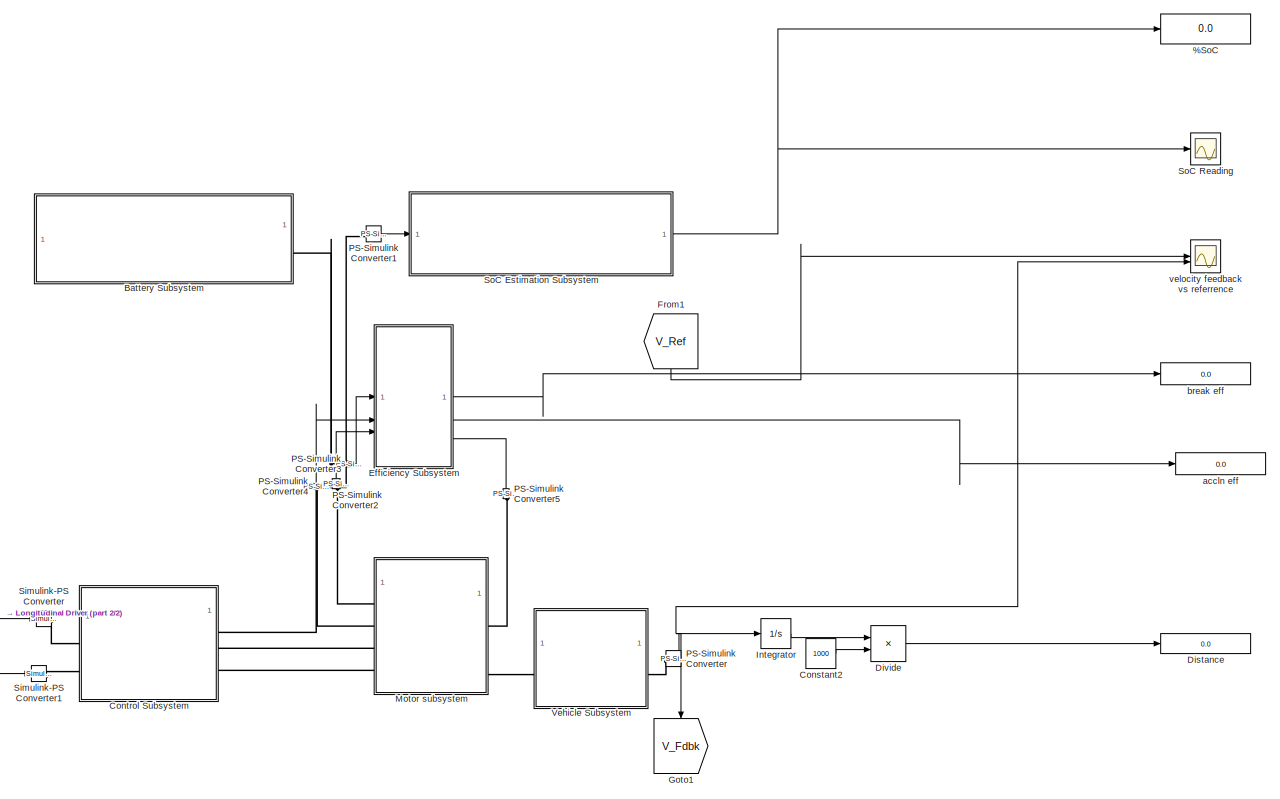
[diagram: root canvas - part 1/2, center side, full height]
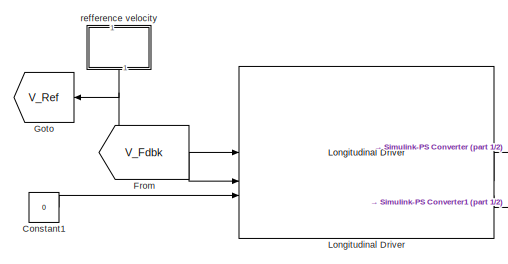
[diagram: root canvas - part 2/2, bottom left region]
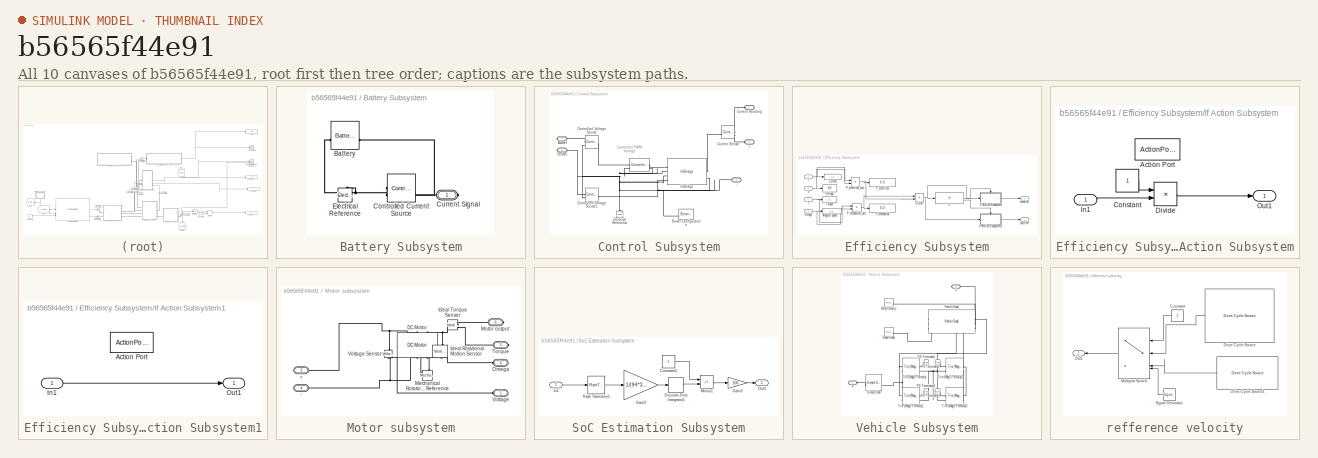
[diagram: thumbnail index - all 10 canvases of the model, root first then tree order]
MODEL slx_b56565f44e91
KIND model
CONFIG AbsTol = auto
CONFIG EnableMultiTasking = off
CONFIG FixedStep = auto
CONFIG MaxStep = auto
CONFIG MinStep = auto
CONFIG RelTol = 1e-3
CONFIG SampleTimeConstraint = Unconstrained
CONFIG SolverName = VariableStepAuto
CONFIG StartTime = 0.0
CONFIG StopTime = 2474
BLOCK [Display] %SoC
  Decimation = 1
BLOCK [SubSystem] Battery Subsystem
BLOCK [Reference] Battery Subsystem/Battery  REF=batteryecm_lib/Battery
  LibrarySourceBlock = ee_lib/Sources/Battery
  SourceBlock = batteryecm_lib/Battery
  SourceType = Battery
BLOCK [Reference] Battery Subsystem/Controlled Current Source  REF=fl_lib/Electrical/Electrical Sources/Controlled Current
Source
  NameLocation = top
  SourceBlock = fl_lib/Electrical/Electrical Sources/Controlled Current\nSource
  SourceType = Controlled Current\nSource
BLOCK [PMIOPort] Battery Subsystem/Current Signal
  Side = Right
BLOCK [Reference] Battery Subsystem/Electrical Reference  REF=fl_lib/Electrical/Electrical Elements/Electrical Reference
  LibrarySourceBlock = ee_lib/Connectors &\nReferences/Electrical Reference
  SourceBlock = fl_lib/Electrical/Electrical Elements/Electrical Reference
  SourceType = Electrical Reference
BLOCK [Constant] Constant1
  Value = 0
BLOCK [Constant] Constant2
  Value = 1000
BLOCK [SubSystem] Control Subsystem
BLOCK [PMIOPort] Control Subsystem/+
  Port = 2
  Side = Left
BLOCK [PMIOPort] Control Subsystem/-
  NameLocation = top
  Port = 3
  Side = Left
BLOCK [Reference] Control Subsystem/.  REF=ee_lib/Integrated Circuits/Controlled PWM
Voltage
  SourceBlock = ee_lib/Integrated Circuits/Controlled PWM\nVoltage
  SourceType = Controlled PWM\nVoltage
BLOCK [PMIOPort] Control Subsystem/AccRef
  Port = 4
  Side = Right
BLOCK [Reference] Control Subsystem/Controlled Voltage Source  REF=fl_lib/Electrical/Electrical Sources/Controlled Voltage
Source
  NameLocation = right
  SourceBlock = fl_lib/Electrical/Electrical Sources/Controlled Voltage\nSource
  SourceType = Controlled Voltage\nSource
BLOCK [Reference] Control Subsystem/Controlled Voltage Source1  REF=fl_lib/Electrical/Electrical Sources/Controlled Voltage
Source
  SourceBlock = fl_lib/Electrical/Electrical Sources/Controlled Voltage\nSource
  SourceType = Controlled Voltage\nSource
BLOCK [PMIOPort] Control Subsystem/Current Reading
  Side = Left
BLOCK [Reference] Control Subsystem/Current Sensor  REF=fl_lib/Electrical/Electrical Sensors/Current Sensor
  SourceBlock = fl_lib/Electrical/Electrical Sensors/Current Sensor
  SourceType = Current Sensor
BLOCK [PMIOPort] Control Subsystem/DecRef
  Port = 5
  Side = Right
BLOCK [Reference] Control Subsystem/Electrical Reference  REF=fl_lib/Electrical/Electrical Elements/Electrical Reference
  LibrarySourceBlock = ee_lib/Connectors &\nReferences/Electrical Reference
  NameLocation = right
  SourceBlock = fl_lib/Electrical/Electrical Elements/Electrical Reference
  SourceType = Electrical Reference
BLOCK [Reference] Control Subsystem/H-Bridge  REF=ee_lib/Semiconductors &
Converters/Converters/H-Bridge
  SourceBlock = ee_lib/Semiconductors &\nConverters/Converters/H-Bridge
  SourceType = H-Bridge
BLOCK [Reference] Control Subsystem/Solver Configuration  REF=nesl_utility/Solver
Configuration
  NameLocation = top
  SourceBlock = nesl_utility/Solver\nConfiguration
  SourceType = Solver\nConfiguration
BLOCK [Display] Distance
  Decimation = 1
BLOCK [Product] Divide
  Inputs = */
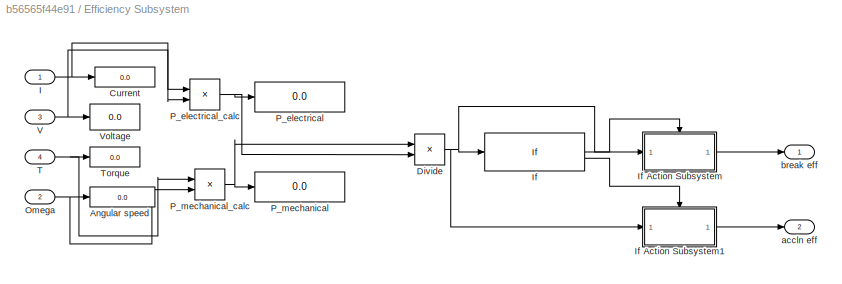
BLOCK [SubSystem] Efficiency Subsystem
  PortSchema = {"entries":[{"content":{"sides":[{"content":{"connectorIds":["In1","In2","In3"]},"type":"ConnectorPlacement.EquallySpacedRectSide","uuid":"06f3370c-e007-458e-92de-6f83343b1b99"},{"content":{"connectorIds":["Out1","Out2","In4"],"side":"RIGHT"},"type":"ConnectorPlacement.EquallySpacedRectSide","uuid":"ba25a50b-e027-4934-8a11-e656e38d1524"},{"content":{"side":"TOP"},"type":"ConnectorPlacement.Equally...<+247ch>
BLOCK [Display] Efficiency Subsystem/Angular speed
  Decimation = 1
BLOCK [Display] Efficiency Subsystem/Current
  Decimation = 1
BLOCK [Product] Efficiency Subsystem/Divide
  Inputs = */
BLOCK [Inport] Efficiency Subsystem/I
BLOCK [If] Efficiency Subsystem/If
  IfExpression = u1 > 1
BLOCK [SubSystem] Efficiency Subsystem/If Action Subsystem
  TreatAsAtomicUnit = on
BLOCK [ActionPort] Efficiency Subsystem/If Action Subsystem/Action Port
  ActionPortLabel = if(u1 > 1)
BLOCK [Constant] Efficiency Subsystem/If Action Subsystem/Constant
BLOCK [Product] Efficiency Subsystem/If Action Subsystem/Divide
  Inputs = */
BLOCK [Inport] Efficiency Subsystem/If Action Subsystem/In1
BLOCK [Outport] Efficiency Subsystem/If Action Subsystem/Out1
BLOCK [SubSystem] Efficiency Subsystem/If Action Subsystem1
  TreatAsAtomicUnit = on
BLOCK [ActionPort] Efficiency Subsystem/If Action Subsystem1/Action Port
  ActionPortLabel = else
BLOCK [Inport] Efficiency Subsystem/If Action Subsystem1/In1
BLOCK [Outport] Efficiency Subsystem/If Action Subsystem1/Out1
BLOCK [Inport] Efficiency Subsystem/Omega
  Port = 2
BLOCK [Display] Efficiency Subsystem/P_electrical
  Decimation = 1
BLOCK [Product] Efficiency Subsystem/P_electrical_calc
BLOCK [Display] Efficiency Subsystem/P_mechanical
  Decimation = 1
BLOCK [Product] Efficiency Subsystem/P_mechanical_calc
BLOCK [Inport] Efficiency Subsystem/T
  Port = 4
BLOCK [Display] Efficiency Subsystem/Torque
  Decimation = 1
BLOCK [Inport] Efficiency Subsystem/V
  Port = 3
BLOCK [Display] Efficiency Subsystem/Voltage
  Decimation = 1
BLOCK [Outport] Efficiency Subsystem/accln eff
  Port = 2
BLOCK [Outport] Efficiency Subsystem/break eff
BLOCK [From] From
  GotoTag = V_Fdbk
BLOCK [From] From1
  GotoTag = V_Ref
  NameLocation = left
BLOCK [Goto] Goto
  GotoTag = V_Ref
  NameLocation = top
BLOCK [Goto] Goto1
  GotoTag = V_Fdbk
  NameLocation = left
BLOCK [Integrator] Integrator
BLOCK [Reference] Longitudinal Driver  REF=autolibshared/Longitudinal Driver
  LibrarySourceBlock = autolibscenario/Longitudinal Driver
  SourceBlock = autolibshared/Longitudinal Driver
  SourceType = Longitudinal Driver
BLOCK [SubSystem] Motor subsystem
BLOCK [PMIOPort] Motor subsystem/+
  Port = 3
  Side = Left
BLOCK [PMIOPort] Motor subsystem/-
  Port = 4
  Side = Left
BLOCK [Reference] Motor subsystem/DC Motor  REF=ee_lib/Electromechanical/Brushed Motors/DC Motor
  NameLocation = right
  SourceBlock = ee_lib/Electromechanical/Brushed Motors/DC Motor
  SourceType = DC Motor
BLOCK [Reference] Motor subsystem/Ideal Rotational Motion Sensor  REF=fl_lib/Mechanical/Mechanical Sensors/Ideal Rotational
Motion Sensor
  NameLocation = left
  SourceBlock = fl_lib/Mechanical/Mechanical Sensors/Ideal Rotational\nMotion Sensor
  SourceType = Ideal Rotational\nMotion Sensor
BLOCK [Reference] Motor subsystem/Ideal Torque Sensor  REF=fl_lib/Mechanical/Mechanical Sensors/Ideal Torque Sensor
  SourceBlock = fl_lib/Mechanical/Mechanical Sensors/Ideal Torque Sensor
  SourceType = Ideal Torque Sensor
BLOCK [Reference] Motor subsystem/Mechanical Rotational Reference  REF=fl_lib/Mechanical/Rotational Elements/Mechanical
Rotational Reference
  NameLocation = right
  SourceBlock = fl_lib/Mechanical/Rotational Elements/Mechanical\nRotational Reference
  SourceType = Mechanical\nRotational Reference
BLOCK [PMIOPort] Motor subsystem/Motor output
  Port = 6
  Side = Right
BLOCK [PMIOPort] Motor subsystem/Omega
  Port = 2
  Side = Left
BLOCK [PMIOPort] Motor subsystem/Torque
  Port = 5
  Side = Right
BLOCK [PMIOPort] Motor subsystem/Voltage
  Side = Left
BLOCK [Reference] Motor subsystem/Voltage Sensor  REF=fl_lib/Electrical/Electrical Sensors/Voltage Sensor
  NameLocation = left
  SourceBlock = fl_lib/Electrical/Electrical Sensors/Voltage Sensor
  SourceType = Voltage Sensor
BLOCK [Reference] PS-Simulink Converter  REF=nesl_utility/PS-Simulink
Converter
  SourceBlock = nesl_utility/PS-Simulink\nConverter
  SourceType = PS-Simulink\nConverter
BLOCK [Reference] PS-Simulink Converter1  REF=nesl_utility/PS-Simulink
Converter
  SourceBlock = nesl_utility/PS-Simulink\nConverter
  SourceType = PS-Simulink\nConverter
BLOCK [Reference] PS-Simulink Converter2  REF=nesl_utility/PS-Simulink
Converter
  NameLocation = right
  SourceBlock = nesl_utility/PS-Simulink\nConverter
  SourceType = PS-Simulink\nConverter
BLOCK [Reference] PS-Simulink Converter3  REF=nesl_utility/PS-Simulink
Converter
  SourceBlock = nesl_utility/PS-Simulink\nConverter
  SourceType = PS-Simulink\nConverter
BLOCK [Reference] PS-Simulink Converter4  REF=nesl_utility/PS-Simulink
Converter
  NameLocation = right
  SourceBlock = nesl_utility/PS-Simulink\nConverter
  SourceType = PS-Simulink\nConverter
BLOCK [Reference] PS-Simulink Converter5  REF=nesl_utility/PS-Simulink
Converter
  NameLocation = right
  SourceBlock = nesl_utility/PS-Simulink\nConverter
  SourceType = PS-Simulink\nConverter
BLOCK [Reference] Simulink-PS Converter  REF=nesl_utility/Simulink-PS
Converter
  SourceBlock = nesl_utility/Simulink-PS\nConverter
  SourceType = Simulink-PS\nConverter
BLOCK [Reference] Simulink-PS Converter1  REF=nesl_utility/Simulink-PS
Converter
  SourceBlock = nesl_utility/Simulink-PS\nConverter
  SourceType = Simulink-PS\nConverter
BLOCK [SubSystem] SoC Estimation Subsystem
BLOCK [Constant] SoC Estimation Subsystem/Constant1
BLOCK [DiscreteIntegrator] SoC Estimation Subsystem/Discrete-Time Integrator1
  ICPrevOutput = DiscIntNeverNeededParam
  ICPrevScaledInput = DiscIntNeverNeededParam
  InitialConditionSetting = Auto
  SampleTime = -1
BLOCK [Gain] SoC Estimation Subsystem/Gain2
  Gain = 1/(94*3600)
BLOCK [Gain] SoC Estimation Subsystem/Gain3
  Gain = 100
BLOCK [Inport] SoC Estimation Subsystem/In1
BLOCK [Sum] SoC Estimation Subsystem/Minus1
  IconShape = rectangular
  Inputs = +-
BLOCK [Outport] SoC Estimation Subsystem/Out1
BLOCK [RateTransition] SoC Estimation Subsystem/Rate Transition1
BLOCK [Scope] SoC Reading
  Floating = off
  NumInputPorts = 1
  ScopeSpecificationString = Simulink.scopes.TimeScopeBlockCfg('CurrentConfiguration', extmgr.ConfigurationSet(extmgr.Configuration('Core','General UI',true),extmgr.Configuration('Core','Source UI',true),extmgr.Configuration('Sources','WiredSimulink',true,'DataLoggingVariableName','ScopeData1'),extmgr.Configuration('Visuals','Time Domain',true,'SerializedDisplays',{struct('MinYLimReal','63.42394','MaxYLimReal','123.74635','YL...<+1586ch>
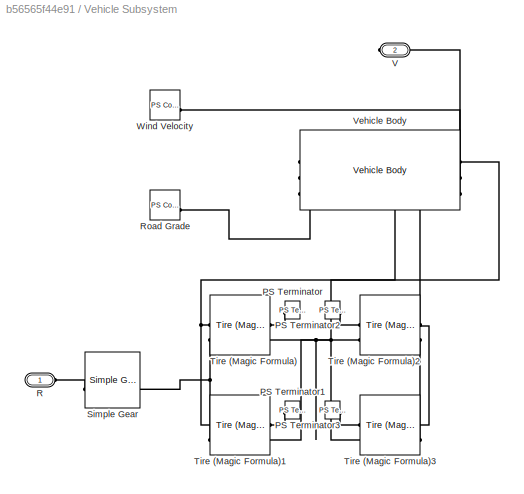
BLOCK [SubSystem] Vehicle Subsystem
BLOCK [Reference] Vehicle Subsystem/PS Terminator  REF=fl_lib/Physical Signals/Sinks/PS Terminator
  SourceBlock = fl_lib/Physical Signals/Sinks/PS Terminator
  SourceType = PS Terminator
BLOCK [Reference] Vehicle Subsystem/PS Terminator1  REF=fl_lib/Physical Signals/Sinks/PS Terminator
  SourceBlock = fl_lib/Physical Signals/Sinks/PS Terminator
  SourceType = PS Terminator
BLOCK [Reference] Vehicle Subsystem/PS Terminator2  REF=fl_lib/Physical Signals/Sinks/PS Terminator
  SourceBlock = fl_lib/Physical Signals/Sinks/PS Terminator
  SourceType = PS Terminator
BLOCK [Reference] Vehicle Subsystem/PS Terminator3  REF=fl_lib/Physical Signals/Sinks/PS Terminator
  SourceBlock = fl_lib/Physical Signals/Sinks/PS Terminator
  SourceType = PS Terminator
BLOCK [PMIOPort] Vehicle Subsystem/R
  Side = Left
BLOCK [Reference] Vehicle Subsystem/Road Grade  REF=fl_lib/Physical Signals/Sources/PS Constant
  SourceBlock = fl_lib/Physical Signals/Sources/PS Constant
  SourceType = PS Constant
BLOCK [Reference] Vehicle Subsystem/Simple Gear  REF=sdl_lib/Gears/Simple Gear
  SourceBlock = sdl_lib/Gears/Simple Gear
  SourceType = Simple Gear
BLOCK [Reference] Vehicle Subsystem/Tire (Magic Formula)  REF=sdl_lib/Tires & Vehicles/Tire (Magic Formula)
  SourceBlock = sdl_lib/Tires & Vehicles/Tire (Magic Formula)
  SourceType = Tire (Magic Formula)
BLOCK [Reference] Vehicle Subsystem/Tire (Magic Formula)1  REF=sdl_lib/Tires & Vehicles/Tire (Magic Formula)
  SourceBlock = sdl_lib/Tires & Vehicles/Tire (Magic Formula)
  SourceType = Tire (Magic Formula)
BLOCK [Reference] Vehicle Subsystem/Tire (Magic Formula)2  REF=sdl_lib/Tires & Vehicles/Tire (Magic Formula)
  SourceBlock = sdl_lib/Tires & Vehicles/Tire (Magic Formula)
  SourceType = Tire (Magic Formula)
BLOCK [Reference] Vehicle Subsystem/Tire (Magic Formula)3  REF=sdl_lib/Tires & Vehicles/Tire (Magic Formula)
  SourceBlock = sdl_lib/Tires & Vehicles/Tire (Magic Formula)
  SourceType = Tire (Magic Formula)
BLOCK [PMIOPort] Vehicle Subsystem/V
  Port = 2
  Side = Right
BLOCK [Reference] Vehicle Subsystem/Vehicle Body  REF=sdl_lib/Tires & Vehicles/Vehicle Body
  NameLocation = top
  SourceBlock = sdl_lib/Tires & Vehicles/Vehicle Body
  SourceType = Vehicle Body
BLOCK [Reference] Vehicle Subsystem/Wind Velocity  REF=fl_lib/Physical Signals/Sources/PS Constant
  SourceBlock = fl_lib/Physical Signals/Sources/PS Constant
  SourceType = PS Constant
BLOCK [Display] accln eff
  Decimation = 1
BLOCK [Display] break eff
  Decimation = 1
BLOCK [SubSystem] refference velocity
  NameLocation = right
BLOCK [Constant] refference velocity/Constant
BLOCK [Reference] refference velocity/Drive Cycle Source  REF=autolibshared/Drive Cycle Source
  AttributesFormatString = %<cycleVar> (%<tfinal>)
  LibrarySourceBlock = autolibscenario/Drive Cycle Source
  SourceBlock = autolibshared/Drive Cycle Source
  SourceType = Drive Cycle Source
BLOCK [Reference] refference velocity/Drive Cycle Source1  REF=autolibshared/Drive Cycle Source
  AttributesFormatString = %<cycleVar> (%<tfinal>)
  LibrarySourceBlock = autolibscenario/Drive Cycle Source
  SourceBlock = autolibshared/Drive Cycle Source
  SourceType = Drive Cycle Source
BLOCK [MultiPortSwitch] refference velocity/Multiport Switch
  InputSameDT = off
  SaturateOnIntegerOverflow = off
BLOCK [Outport] refference velocity/Out1
BLOCK [SignalGenerator] refference velocity/Signal Generator
  Units = rad/sec
BLOCK [Scope] velocity feedback vs referrence
  Floating = off
  NumInputPorts = 2
  ScopeSpecificationString = Simulink.scopes.TimeScopeBlockCfg('CurrentConfiguration', extmgr.ConfigurationSet(extmgr.Configuration('Core','General UI',true),extmgr.Configuration('Core','Source UI',true),extmgr.Configuration('Sources','WiredSimulink',true),extmgr.Configuration('Visuals','Time Domain',true,'SerializedDisplays',{struct('MinYLimReal','-3.16945','MaxYLimReal','28.52505','YLabelReal','','MinYLimMag','0.00000','Max...<+1540ch>
ANNOTATION Control Subsystem: Controlled PWM Voltage
LINE Constant1:1 -> Longitudinal Driver:3
LINE Constant2:1 -> Divide:2
LINE Divide:1 -> Distance:1
NET Efficiency Subsystem/Divide:1 -> Efficiency Subsystem/If Action Subsystem1:1, Efficiency Subsystem/If Action Subsystem:1, Efficiency Subsystem/If:1
NET Efficiency Subsystem/I:1 -> Efficiency Subsystem/Current:1, Efficiency Subsystem/P_electrical_calc:1
LINE Efficiency Subsystem/If Action Subsystem/Constant:1 -> Efficiency Subsystem/If Action Subsystem/Divide:1
LINE Efficiency Subsystem/If Action Subsystem/Divide:1 -> Efficiency Subsystem/If Action Subsystem/Out1:1
LINE Efficiency Subsystem/If Action Subsystem/In1:1 -> Efficiency Subsystem/If Action Subsystem/Divide:2
LINE Efficiency Subsystem/If Action Subsystem1/In1:1 -> Efficiency Subsystem/If Action Subsystem1/Out1:1
LINE Efficiency Subsystem/If Action Subsystem1:1 -> Efficiency Subsystem/accln eff:1
LINE Efficiency Subsystem/If Action Subsystem:1 -> Efficiency Subsystem/break eff:1
LINE Efficiency Subsystem/If:1 -> Efficiency Subsystem/If Action Subsystem:ifaction
LINE Efficiency Subsystem/If:2 -> Efficiency Subsystem/If Action Subsystem1:ifaction
NET Efficiency Subsystem/Omega:1 -> Efficiency Subsystem/Angular speed:1, Efficiency Subsystem/P_mechanical_calc:2
NET Efficiency Subsystem/P_electrical_calc:1 -> Efficiency Subsystem/Divide:2, Efficiency Subsystem/P_electrical:1
NET Efficiency Subsystem/P_mechanical_calc:1 -> Efficiency Subsystem/Divide:1, Efficiency Subsystem/P_mechanical:1
NET Efficiency Subsystem/T:1 -> Efficiency Subsystem/P_mechanical_calc:1, Efficiency Subsystem/Torque:1
NET Efficiency Subsystem/V:1 -> Efficiency Subsystem/P_electrical_calc:2, Efficiency Subsystem/Voltage:1
LINE Efficiency Subsystem:1 -> break eff:1
LINE Efficiency Subsystem:2 -> accln eff:1
LINE From1:1 -> velocity feedback vs referrence:1
LINE From:1 -> Longitudinal Driver:2
LINE Integrator:1 -> Divide:1
LINE Longitudinal Driver:2 -> Simulink-PS Converter:1
LINE Longitudinal Driver:3 -> Simulink-PS Converter1:1
LINE PS-Simulink Converter1:1 -> SoC Estimation Subsystem:1
LINE PS-Simulink Converter2:1 -> Efficiency Subsystem:3
LINE PS-Simulink Converter3:1 -> Efficiency Subsystem:1
LINE PS-Simulink Converter4:1 -> Efficiency Subsystem:2
LINE PS-Simulink Converter5:1 -> Efficiency Subsystem:4
NET PS-Simulink Converter:1 -> Goto1:1, Integrator:1, velocity feedback vs referrence:2
LINE SoC Estimation Subsystem/Constant1:1 -> SoC Estimation Subsystem/Minus1:1
LINE SoC Estimation Subsystem/Discrete-Time Integrator1:1 -> SoC Estimation Subsystem/Minus1:2
LINE SoC Estimation Subsystem/Gain2:1 -> SoC Estimation Subsystem/Discrete-Time Integrator1:1
LINE SoC Estimation Subsystem/Gain3:1 -> SoC Estimation Subsystem/Out1:1
LINE SoC Estimation Subsystem/In1:1 -> SoC Estimation Subsystem/Rate Transition1:1
LINE SoC Estimation Subsystem/Minus1:1 -> SoC Estimation Subsystem/Gain3:1
LINE SoC Estimation Subsystem/Rate Transition1:1 -> SoC Estimation Subsystem/Gain2:1
NET SoC Estimation Subsystem:1 -> %SoC:1, SoC Reading:1
LINE refference velocity/Constant:1 -> refference velocity/Multiport Switch:1
LINE refference velocity/Drive Cycle Source1:1 -> refference velocity/Multiport Switch:3
LINE refference velocity/Drive Cycle Source:1 -> refference velocity/Multiport Switch:2
LINE refference velocity/Multiport Switch:1 -> refference velocity/Out1:1
LINE refference velocity/Signal Generator:1 -> refference velocity/Multiport Switch:4
NET refference velocity:1 -> Goto:1, Longitudinal Driver:1
PLINE Battery Subsystem/Battery:LConn1 -- Battery Subsystem/Controlled Current Source:RConn2
PNET net1: Battery Subsystem/Battery:RConn1 -- Battery Subsystem/Controlled Current Source:LConn1 -- Battery Subsystem/Electrical Reference:LConn1
PLINE Battery Subsystem/Controlled Current Source:RConn1 -- Battery Subsystem/Current Signal:RConn1
PNET net2: Battery Subsystem:RConn1 -- Control Subsystem:LConn1 -- PS-Simulink Converter1:LConn1 -- PS-Simulink Converter3:LConn1
PLINE Control Subsystem/+:RConn1 -- Control Subsystem/Current Sensor:RConn2
PNET net3: Control Subsystem/-:RConn1 -- Control Subsystem/.:LConn2 -- Control Subsystem/.:RConn2 -- Control Subsystem/Controlled Voltage Source1:RConn2 -- Control Subsystem/Controlled Voltage Source:RConn2 -- Control Subsystem/Electrical Reference:LConn1 -- Control Subsystem/H-Bridge:LConn2 -- Control Subsystem/H-Bridge:LConn3 -- Control Subsystem/H-Bridge:RConn2 -- Control Subsystem/Solver Configuration:RConn1
PLINE Control Subsystem/.:LConn1 -- Control Subsystem/Controlled Voltage Source:LConn1
PLINE Control Subsystem/.:RConn1 -- Control Subsystem/H-Bridge:LConn1
PLINE Control Subsystem/AccRef:RConn1 -- Control Subsystem/Controlled Voltage Source:RConn1
PLINE Control Subsystem/Controlled Voltage Source1:LConn1 -- Control Subsystem/H-Bridge:LConn4
PLINE Control Subsystem/Controlled Voltage Source1:RConn1 -- Control Subsystem/DecRef:RConn1
PLINE Control Subsystem/Current Reading:RConn1 -- Control Subsystem/Current Sensor:RConn1
PLINE Control Subsystem/Current Sensor:LConn1 -- Control Subsystem/H-Bridge:RConn1
PLINE Control Subsystem:LConn2 -- Motor subsystem:LConn3
PLINE Control Subsystem:LConn3 -- Motor subsystem:LConn4
PLINE Control Subsystem:RConn1 -- Simulink-PS Converter:RConn1
PLINE Control Subsystem:RConn2 -- Simulink-PS Converter1:RConn1
PNET net4: Motor subsystem/+:RConn1 -- Motor subsystem/DC Motor:LConn1 -- Motor subsystem/Voltage Sensor:LConn1
PNET net5: Motor subsystem/-:RConn1 -- Motor subsystem/DC Motor:RConn1 -- Motor subsystem/Voltage Sensor:RConn2
PNET net6: Motor subsystem/DC Motor:LConn2 -- Motor subsystem/Ideal Rotational Motion Sensor:LConn1 -- Motor subsystem/Ideal Torque Sensor:LConn1
PNET net7: Motor subsystem/DC Motor:RConn2 -- Motor subsystem/Ideal Rotational Motion Sensor:RConn1 -- Motor subsystem/Mechanical Rotational Reference:LConn1
PLINE Motor subsystem/Ideal Rotational Motion Sensor:RConn2 -- Motor subsystem/Omega:RConn1
PLINE Motor subsystem/Ideal Torque Sensor:RConn1 -- Motor subsystem/Motor output:RConn1
PLINE Motor subsystem/Ideal Torque Sensor:RConn2 -- Motor subsystem/Torque:RConn1
PLINE Motor subsystem/Voltage Sensor:RConn1 -- Motor subsystem/Voltage:RConn1
PLINE Motor subsystem:LConn1 -- PS-Simulink Converter2:LConn1
PLINE Motor subsystem:LConn2 -- PS-Simulink Converter4:LConn1
PLINE Motor subsystem:RConn1 -- PS-Simulink Converter5:LConn1
PLINE Motor subsystem:RConn2 -- Vehicle Subsystem:LConn1
PLINE PS-Simulink Converter:LConn1 -- Vehicle Subsystem:RConn1
PLINE Vehicle Subsystem/PS Terminator1:LConn1 -- Vehicle Subsystem/Tire (Magic Formula)1:RConn1
PLINE Vehicle Subsystem/PS Terminator2:LConn1 -- Vehicle Subsystem/Tire (Magic Formula)2:RConn1
PLINE Vehicle Subsystem/PS Terminator3:LConn1 -- Vehicle Subsystem/Tire (Magic Formula)3:RConn1
PLINE Vehicle Subsystem/PS Terminator:LConn1 -- Vehicle Subsystem/Tire (Magic Formula):RConn1
PLINE Vehicle Subsystem/R:RConn1 -- Vehicle Subsystem/Simple Gear:LConn1
PLINE Vehicle Subsystem/Road Grade:RConn1 -- Vehicle Subsystem/Vehicle Body:RConn3
PNET net8: Vehicle Subsystem/Simple Gear:RConn1 -- Vehicle Subsystem/Tire (Magic Formula)1:LConn2 -- Vehicle Subsystem/Tire (Magic Formula):LConn2
PNET net9: Vehicle Subsystem/Tire (Magic Formula)1:LConn1 -- Vehicle Subsystem/Tire (Magic Formula):LConn1 -- Vehicle Subsystem/Vehicle Body:RConn2
PNET net10: Vehicle Subsystem/Tire (Magic Formula)1:RConn2 -- Vehicle Subsystem/Tire (Magic Formula)2:RConn2 -- Vehicle Subsystem/Tire (Magic Formula)3:RConn2 -- Vehicle Subsystem/Tire (Magic Formula):RConn2 -- Vehicle Subsystem/Vehicle Body:LConn1
PNET net11: Vehicle Subsystem/Tire (Magic Formula)2:LConn1 -- Vehicle Subsystem/Tire (Magic Formula)3:LConn1 -- Vehicle Subsystem/Vehicle Body:RConn1
PLINE Vehicle Subsystem/Tire (Magic Formula)2:LConn2 -- Vehicle Subsystem/Tire (Magic Formula)3:LConn2
PLINE Vehicle Subsystem/V:RConn1 -- Vehicle Subsystem/Vehicle Body:LConn2
PLINE Vehicle Subsystem/Vehicle Body:LConn3 -- Vehicle Subsystem/Wind Velocity:RConn1
note: NET lines group one-source signal fan-out (src -> all destinations, sorted); 1:1 wires keep LINE; PNET lines group multi-terminal physical nets as a canonical sorted terminal list (undirected conserving connections); 2-terminal nets keep the pairwise PLINE form
